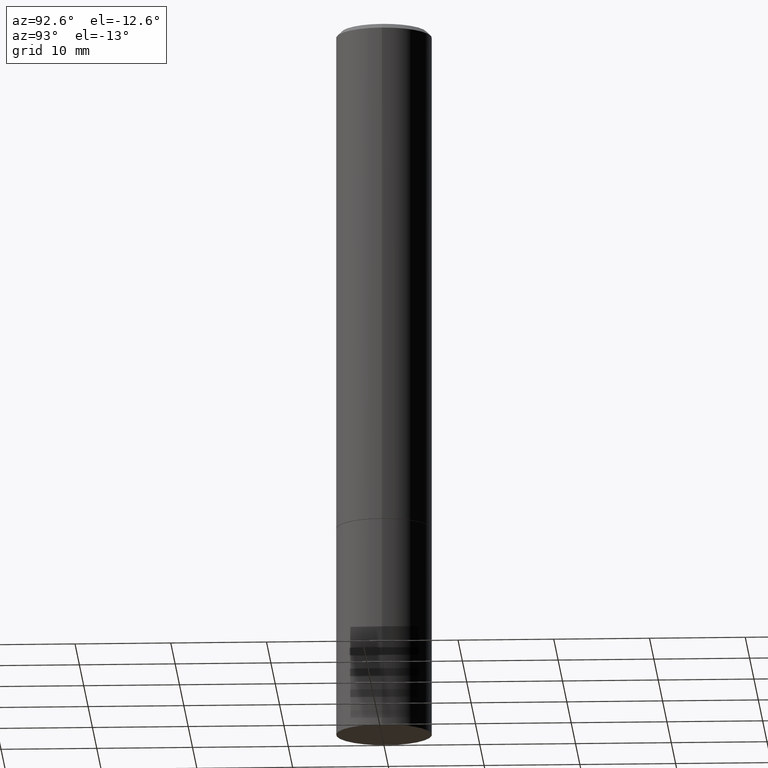
[diagram: clean part render]
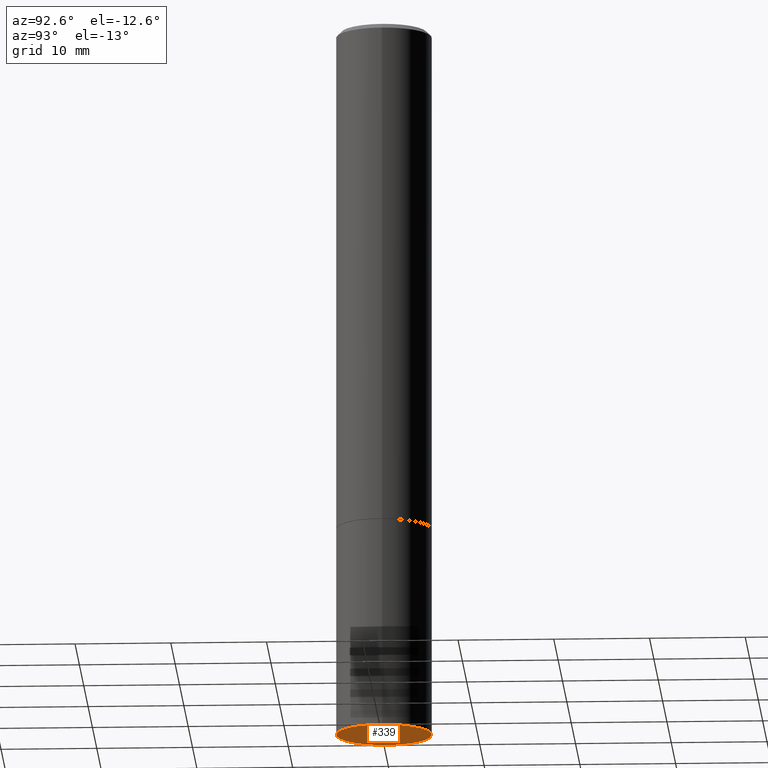
[diagram: same view with one face highlighted and labeled with its STEP entity id]
A machine part, auxiliary view. The second image highlights one B-rep face of the part: STEP entity #339.
In plain terms, the highlighted planar face has unit normal (0, -0, -1).
Its self-contained STEP definition (entity closure, byte-faithful):
#34 = EDGE_CURVE ( 'NONE', #139, #48, #303, .T. ) ;
#40 = PLANE ( 'NONE',  #97 ) ;
#48 = VERTEX_POINT ( 'NONE', #198 ) ;
#67 = DIRECTION ( 'NONE',  ( 2.438088387897960049E-29, -3.491481338843145188E-15, -1.000000000000000000 ) ) ;
#73 = ORIENTED_EDGE ( 'NONE', *, *, #280, .F. ) ;
#97 = AXIS2_PLACEMENT_3D ( 'NONE', #121, #67, #325 ) ;
#103 = DIRECTION ( 'NONE',  ( -2.445468806185136597E-29, 3.491481338843145583E-15, 1.000000000000000000 ) ) ;
#117 = CARTESIAN_POINT ( 'NONE',  ( 0.1968500000000000250, -1.168424230043858014E-14, -2.952799999999999869 ) ) ;
#121 = CARTESIAN_POINT ( 'NONE',  ( 1.374596203102613789E-15, 0.1968499999999896999, -2.952800000000000313 ) ) ;
#139 = VERTEX_POINT ( 'NONE', #117 ) ;
#188 = CARTESIAN_POINT ( 'NONE',  ( 7.220980290903470182E-29, -1.030964609733603853E-14, -2.952799999999999869 ) ) ;
#198 = CARTESIAN_POINT ( 'NONE',  ( -0.1968500000000000250, -7.398956728206258518E-15, -2.952799999999999869 ) ) ;
#200 = ORIENTED_EDGE ( 'NONE', *, *, #34, .F. ) ;
#209 = DIRECTION ( 'NONE',  ( 1.000000000000000000, -6.982962677686267499E-15, 0.000000000000000000 ) ) ;
#246 = EDGE_LOOP ( 'NONE', ( #200, #73 ) ) ;
#274 = AXIS2_PLACEMENT_3D ( 'NONE', #188, #347, #209 ) ;
#280 = EDGE_CURVE ( 'NONE', #48, #139, #328, .T. ) ;
#285 = CARTESIAN_POINT ( 'NONE',  ( 7.220980290903470182E-29, -1.030964609733603853E-14, -2.952799999999999869 ) ) ;
#303 = CIRCLE ( 'NONE', #323, 0.1968500000000000250 ) ;
#323 = AXIS2_PLACEMENT_3D ( 'NONE', #285, #103, #363 ) ;
#325 = DIRECTION ( 'NONE',  ( -1.000000000000000000, 6.982962677686265922E-15, -4.876176775795935793E-29 ) ) ;
#328 = CIRCLE ( 'NONE', #274, 0.1968500000000000250 ) ;
#339 = ADVANCED_FACE ( 'NONE', ( #353 ), #40, .T. ) ;
#347 = DIRECTION ( 'NONE',  ( -2.445468806185136597E-29, 3.491481338843145583E-15, 1.000000000000000000 ) ) ;
#353 = FACE_OUTER_BOUND ( 'NONE', #246, .T. ) ;
#363 = DIRECTION ( 'NONE',  ( 1.000000000000000000, -6.982962677686267499E-15, 0.000000000000000000 ) ) ;